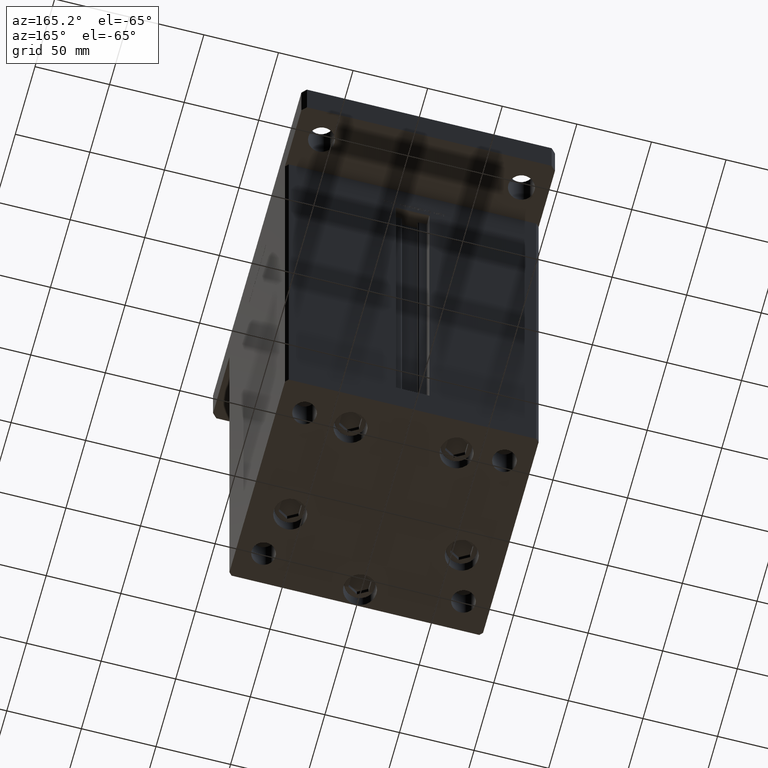
[diagram: clean part render]
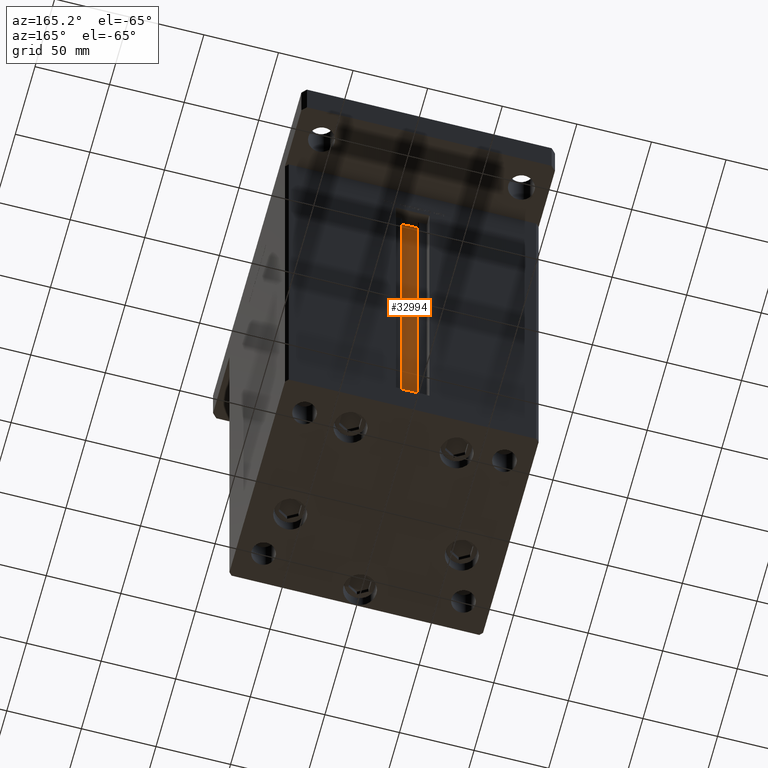
[diagram: same view with one face highlighted and labeled with its STEP entity id]
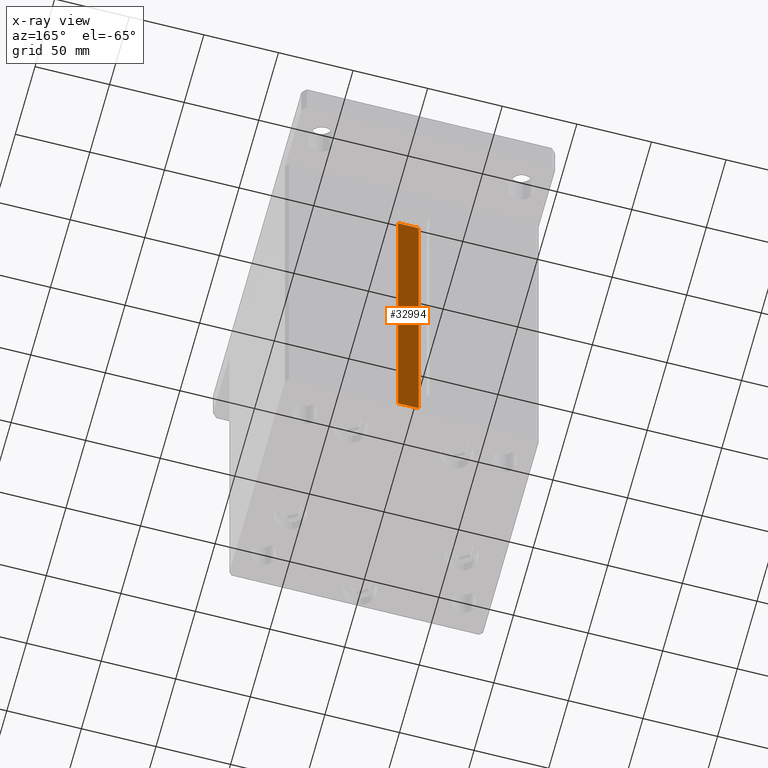
[diagram: x-ray of the same camera — body ghosted, the highlighted face saturated]
A machine part, auxiliary view. The second image highlights one B-rep face of the part: STEP entity #32994.
The next image is the same camera in x-ray: the body ghosted, the highlighted face saturated — about 0% of this face is hidden behind the body in this view.
In plain terms, the highlighted planar face has unit normal (0, -1, 0).
Its self-contained STEP definition (entity closure, byte-faithful):
#529 = EDGE_CURVE ( 'NONE', #36463, #13630, #26477, .T. ) ;
#6009 = CARTESIAN_POINT ( 'NONE',  ( 6.876153656360466826, 61.99999999999985079, 0.000000000000000000 ) ) ;
#6347 = ORIENTED_EDGE ( 'NONE', *, *, #529, .T. ) ;
#9702 = EDGE_CURVE ( 'NONE', #36463, #12961, #32959, .T. ) ;
#12122 = DIRECTION ( 'NONE',  ( 1.000000000000000000, -0.000000000000000000, -0.000000000000000000 ) ) ;
#12961 = VERTEX_POINT ( 'NONE', #19531 ) ;
#13630 = VERTEX_POINT ( 'NONE', #37101 ) ;
#16282 = ORIENTED_EDGE ( 'NONE', *, *, #48799, .F. ) ;
#17509 = VECTOR ( 'NONE', #43266, 1000.000000000000000 ) ;
#19523 = ORIENTED_EDGE ( 'NONE', *, *, #21046, .F. ) ;
#19531 = CARTESIAN_POINT ( 'NONE',  ( 6.876153656360466826, 61.99999999999985079, 0.000000000000000000 ) ) ;
#21046 = EDGE_CURVE ( 'NONE', #12961, #24984, #38651, .T. ) ;
#23354 = LINE ( 'NONE', #39872, #29656 ) ;
#24984 = VERTEX_POINT ( 'NONE', #47134 ) ;
#26311 = DIRECTION ( 'NONE',  ( 0.000000000000000000, 0.000000000000000000, -1.000000000000000000 ) ) ;
#26477 = LINE ( 'NONE', #30802, #17509 ) ;
#26709 = CARTESIAN_POINT ( 'NONE',  ( -6.876153656360466826, 61.99999999999985079, 0.000000000000000000 ) ) ;
#29656 = VECTOR ( 'NONE', #40146, 1000.000000000000000 ) ;
#30802 = CARTESIAN_POINT ( 'NONE',  ( -6.876153656360466826, 61.99999999999985079, 0.000000000000000000 ) ) ;
#32852 = VECTOR ( 'NONE', #50833, 1000.000000000000000 ) ;
#32959 = LINE ( 'NONE', #41339, #48056 ) ;
#32994 = ADVANCED_FACE ( 'NONE', ( #39035 ), #38513, .F. ) ;
#36463 = VERTEX_POINT ( 'NONE', #26709 ) ;
#37101 = CARTESIAN_POINT ( 'NONE',  ( -6.876153656360466826, 61.99999999999985079, 276.0000000000000000 ) ) ;
#38513 = PLANE ( 'NONE',  #39110 ) ;
#38651 = LINE ( 'NONE', #51096, #32852 ) ;
#39035 = FACE_OUTER_BOUND ( 'NONE', #49639, .T. ) ;
#39110 = AXIS2_PLACEMENT_3D ( 'NONE', #6009, #46626, #26311 ) ;
#39872 = CARTESIAN_POINT ( 'NONE',  ( 0.000000000000000000, 61.99999999999985079, 276.0000000000000000 ) ) ;
#40146 = DIRECTION ( 'NONE',  ( -1.000000000000000000, 0.000000000000000000, 0.000000000000000000 ) ) ;
#41339 = CARTESIAN_POINT ( 'NONE',  ( 6.876153656360466826, 61.99999999999985079, 0.000000000000000000 ) ) ;
#43266 = DIRECTION ( 'NONE',  ( -0.000000000000000000, -0.000000000000000000, 1.000000000000000000 ) ) ;
#46626 = DIRECTION ( 'NONE',  ( 0.000000000000000000, -1.000000000000000000, -0.000000000000000000 ) ) ;
#46776 = ORIENTED_EDGE ( 'NONE', *, *, #9702, .F. ) ;
#47134 = CARTESIAN_POINT ( 'NONE',  ( 6.876153656360466826, 61.99999999999985079, 276.0000000000000000 ) ) ;
#48056 = VECTOR ( 'NONE', #12122, 1000.000000000000000 ) ;
#48799 = EDGE_CURVE ( 'NONE', #24984, #13630, #23354, .T. ) ;
#49639 = EDGE_LOOP ( 'NONE', ( #19523, #46776, #6347, #16282 ) ) ;
#50833 = DIRECTION ( 'NONE',  ( -0.000000000000000000, -0.000000000000000000, 1.000000000000000000 ) ) ;
#51096 = CARTESIAN_POINT ( 'NONE',  ( 6.876153656360466826, 61.99999999999985079, 0.000000000000000000 ) ) ;